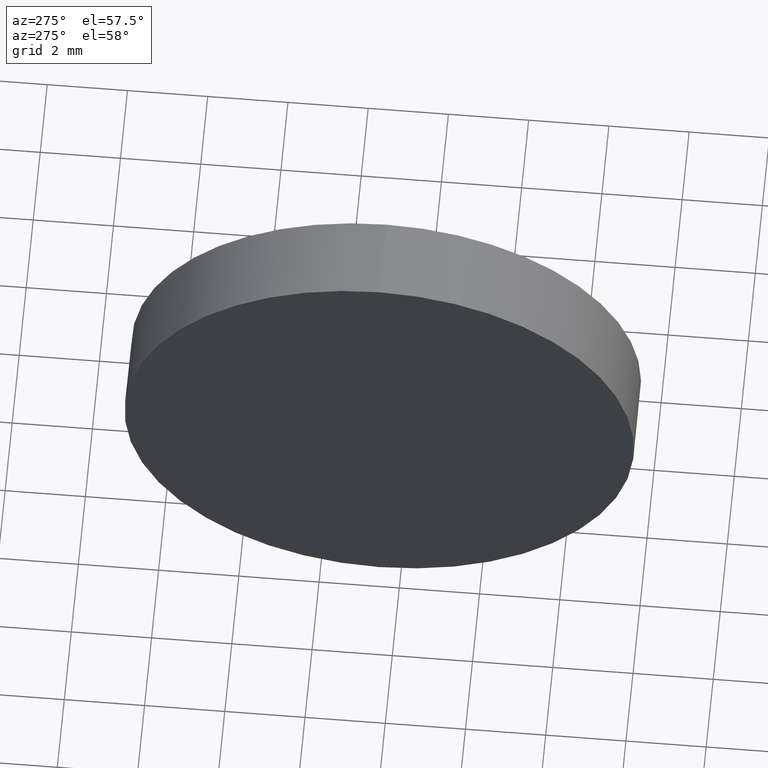
[diagram: clean part render]
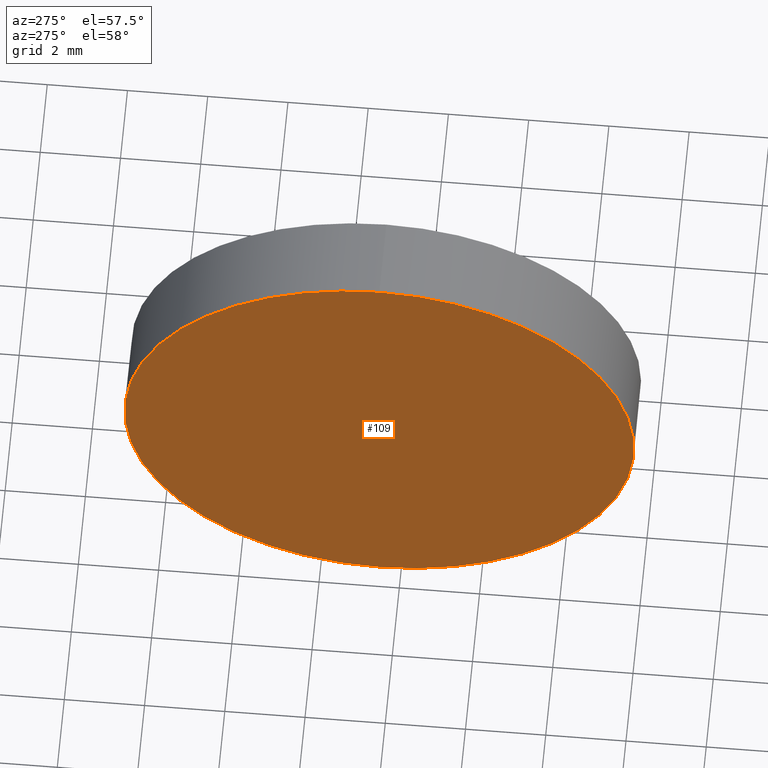
[diagram: same view with one face highlighted and labeled with its STEP entity id]
A machine part, auxiliary view. The second image highlights one B-rep face of the part: STEP entity #109.
In plain terms, the highlighted planar face has unit normal (1, 0, 0).
Its self-contained STEP definition (entity closure, byte-faithful):
#5 = CIRCLE ( 'NONE', #137, 6.349999999999994300 ) ;
#6 = EDGE_LOOP ( 'NONE', ( #37, #98 ) ) ;
#12 = DIRECTION ( 'NONE',  ( 0.0000000000000000000, 0.0000000000000000000, -1.000000000000000000 ) ) ;
#18 = DIRECTION ( 'NONE',  ( -1.000000000000000000, -0.0000000000000000000, -0.0000000000000000000 ) ) ;
#33 = AXIS2_PLACEMENT_3D ( 'NONE', #180, #18, #144 ) ;
#37 = ORIENTED_EDGE ( 'NONE', *, *, #164, .T. ) ;
#47 = CARTESIAN_POINT ( 'NONE',  ( 458.3949147260378300, 88.53423358317982700, 0.0000000000000000000 ) ) ;
#49 = AXIS2_PLACEMENT_3D ( 'NONE', #80, #159, #12 ) ;
#63 = PLANE ( 'NONE',  #49 ) ;
#73 = CARTESIAN_POINT ( 'NONE',  ( 458.3949147260378300, 88.53423358317982700, 6.349999999999994300 ) ) ;
#80 = CARTESIAN_POINT ( 'NONE',  ( 458.3949147260378300, 88.53423358317982700, 0.0000000000000000000 ) ) ;
#85 = VERTEX_POINT ( 'NONE', #186 ) ;
#98 = ORIENTED_EDGE ( 'NONE', *, *, #131, .T. ) ;
#109 = ADVANCED_FACE ( 'NONE', ( #143 ), #63, .F. ) ;
#131 = EDGE_CURVE ( 'NONE', #85, #185, #5, .T. ) ;
#136 = DIRECTION ( 'NONE',  ( -1.000000000000000000, -0.0000000000000000000, -0.0000000000000000000 ) ) ;
#137 = AXIS2_PLACEMENT_3D ( 'NONE', #47, #136, #151 ) ;
#143 = FACE_OUTER_BOUND ( 'NONE', #6, .T. ) ;
#144 = DIRECTION ( 'NONE',  ( 0.0000000000000000000, 0.0000000000000000000, 1.000000000000000000 ) ) ;
#151 = DIRECTION ( 'NONE',  ( 0.0000000000000000000, 0.0000000000000000000, 1.000000000000000000 ) ) ;
#159 = DIRECTION ( 'NONE',  ( 1.000000000000000000, 0.0000000000000000000, 0.0000000000000000000 ) ) ;
#164 = EDGE_CURVE ( 'NONE', #185, #85, #168, .T. ) ;
#168 = CIRCLE ( 'NONE', #33, 6.349999999999994300 ) ;
#180 = CARTESIAN_POINT ( 'NONE',  ( 458.3949147260378300, 88.53423358317982700, 0.0000000000000000000 ) ) ;
#185 = VERTEX_POINT ( 'NONE', #73 ) ;
#186 = CARTESIAN_POINT ( 'NONE',  ( 458.3949147260378300, 88.53423358317982700, -6.349999999999994300 ) ) ;